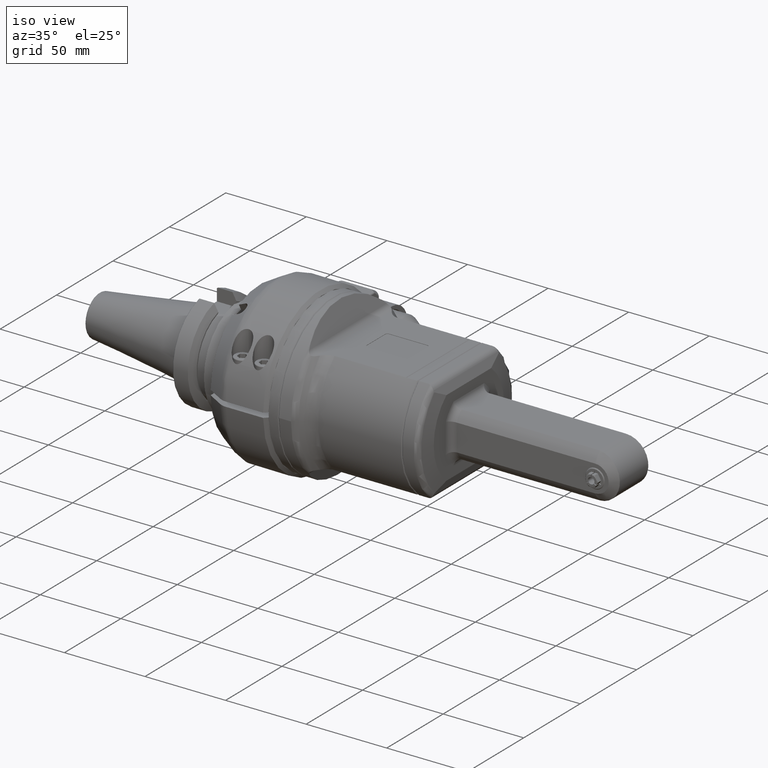
[diagram: clean part render]
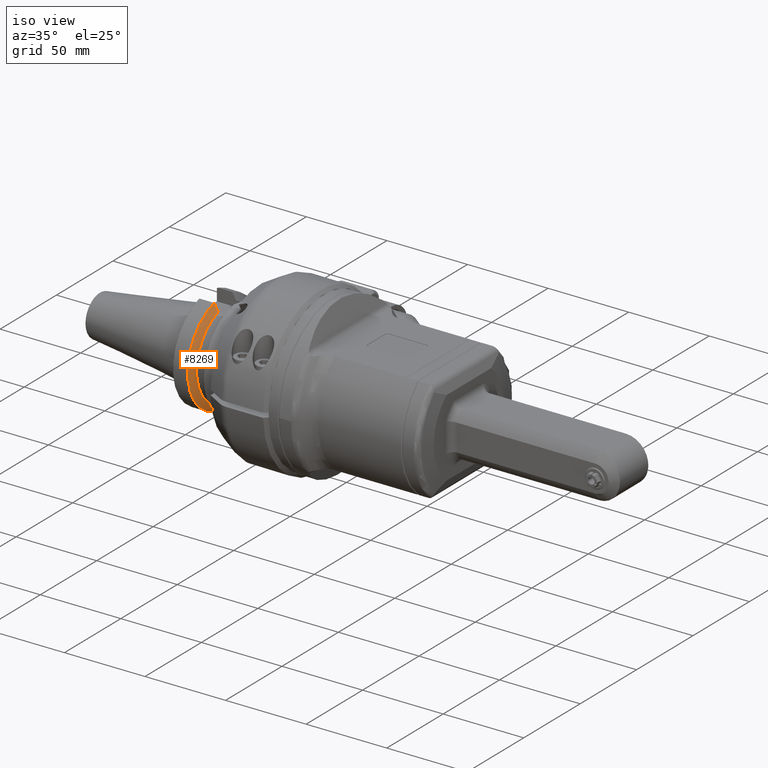
[diagram: same view with one face highlighted and labeled with its STEP entity id]
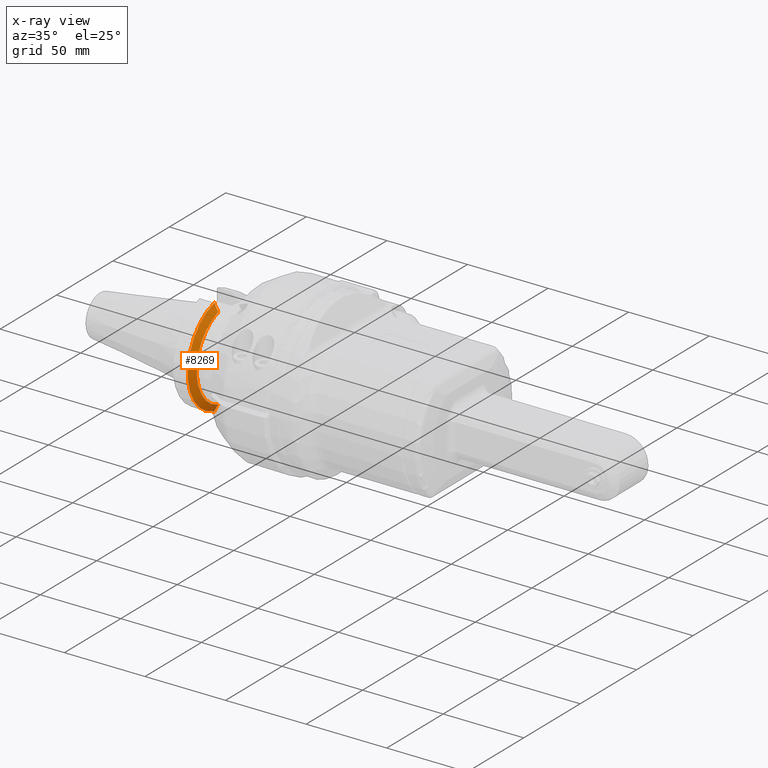
[diagram: x-ray of the same camera — body ghosted, the highlighted face saturated]
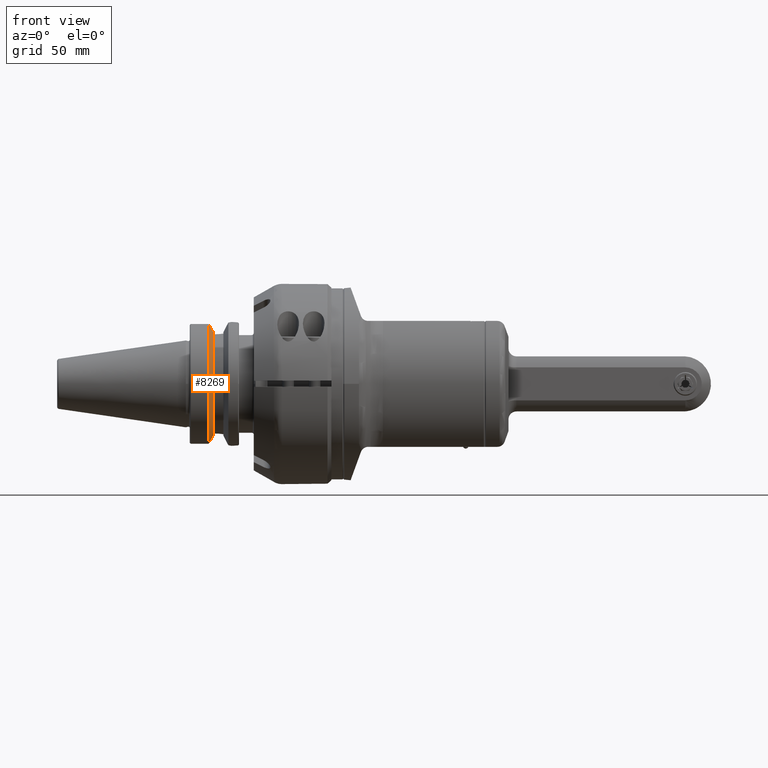
[diagram: same view with one face highlighted and labeled with its STEP entity id]
A machine part, iso view. The second image highlights one B-rep face of the part: STEP entity #8269.
The next image is the same camera in x-ray: the body ghosted, the highlighted face saturated — about 3% of this face is hidden behind the body in this view.
A second angle (front view) of the same face is appended — the face is thin or edge-on in the first view.
In plain terms, the highlighted conical surface has half-angle 60 deg.
Its self-contained STEP definition (entity closure, byte-faithful):
#99=CONICAL_SURFACE('',#9106,29.33481350946,1.0471975511966);
#196=(
BOUNDED_CURVE()
B_SPLINE_CURVE(2,(#44387,#44388,#44389),.UNSPECIFIED.,.F.,.F.)
B_SPLINE_CURVE_WITH_KNOTS((3,3),(-2.52625181723202,-1.90166056070276),
 .UNSPECIFIED.)
CURVE()
GEOMETRIC_REPRESENTATION_ITEM()
RATIONAL_B_SPLINE_CURVE((1.02064612104026,1.03030670235471,1.03392826237731))
REPRESENTATION_ITEM('')
);
#197=(
BOUNDED_CURVE()
B_SPLINE_CURVE(2,(#44390,#44391,#44392),.UNSPECIFIED.,.F.,.F.)
B_SPLINE_CURVE_WITH_KNOTS((3,3),(0.527943041555982,1.1525346805161),
 .UNSPECIFIED.)
CURVE()
GEOMETRIC_REPRESENTATION_ITEM()
RATIONAL_B_SPLINE_CURVE((1.02064612104018,1.03030670826973,1.03392826681216))
REPRESENTATION_ITEM('')
);
#967=FACE_OUTER_BOUND('',#1506,.T.);
#1506=EDGE_LOOP('',(#7215,#7216,#7217,#7218));
#3216=CIRCLE('',#9105,31.5);
#3217=CIRCLE('',#9107,27.16962701892);
#3925=VERTEX_POINT('',#44378);
#3926=VERTEX_POINT('',#44379);
#3927=VERTEX_POINT('',#44384);
#3928=VERTEX_POINT('',#44385);
#5052=EDGE_CURVE('',#3925,#3926,#3216,.T.);
#5055=EDGE_CURVE('',#3927,#3928,#3217,.T.);
#5056=EDGE_CURVE('',#3927,#3925,#196,.T.);
#5057=EDGE_CURVE('',#3928,#3926,#197,.T.);
#7215=ORIENTED_EDGE('',*,*,#5055,.F.);
#7216=ORIENTED_EDGE('',*,*,#5056,.T.);
#7217=ORIENTED_EDGE('',*,*,#5052,.T.);
#7218=ORIENTED_EDGE('',*,*,#5057,.F.);
#8269=ADVANCED_FACE('',(#967),#99,.T.);
#9105=AXIS2_PLACEMENT_3D('',#44380,#11099,#11100);
#9106=AXIS2_PLACEMENT_3D('',#44383,#11103,#11104);
#9107=AXIS2_PLACEMENT_3D('',#44386,#11105,#11106);
#11099=DIRECTION('center_axis',(1.,0.,0.));
#11100=DIRECTION('ref_axis',(0.,-1.,0.));
#11103=DIRECTION('center_axis',(-1.,0.,0.));
#11104=DIRECTION('ref_axis',(0.,-1.,-1.19710704796842E-8));
#11105=DIRECTION('center_axis',(1.,0.,0.));
#11106=DIRECTION('ref_axis',(0.,-1.,0.));
#44378=CARTESIAN_POINT('',(-74.4001419651638,-8.05000076617519,30.454022446529));
#44379=CARTESIAN_POINT('',(-74.4001470886158,-8.05000065109323,-30.45402345732));
#44380=CARTESIAN_POINT('Origin',(-74.40014200632,0.,0.));
#44383=CARTESIAN_POINT('Origin',(-73.15007100316,0.,0.));
#44384=CARTESIAN_POINT('',(-71.900000042043,-8.04999905839414,25.9496848936463));
#44385=CARTESIAN_POINT('',(-71.9000000420395,-8.04999905847169,-25.9496848936244));
#44386=CARTESIAN_POINT('Origin',(-71.9,0.,0.));
#44387=CARTESIAN_POINT('Ctrl Pts',(-71.9000001216888,-8.05,25.9496848497294));
#44388=CARTESIAN_POINT('Ctrl Pts',(-73.0502417234519,-8.05,28.0356223435858));
#44389=CARTESIAN_POINT('Ctrl Pts',(-74.4001418789721,-8.05,30.4540224946394));
#44390=CARTESIAN_POINT('Ctrl Pts',(-71.9000001216787,-8.05,-25.9496848497111));
#44391=CARTESIAN_POINT('Ctrl Pts',(-73.0502424211186,-8.05,-28.035623608789));
#44392=CARTESIAN_POINT('Ctrl Pts',(-74.4001435262305,-8.05,-30.4540254457687));